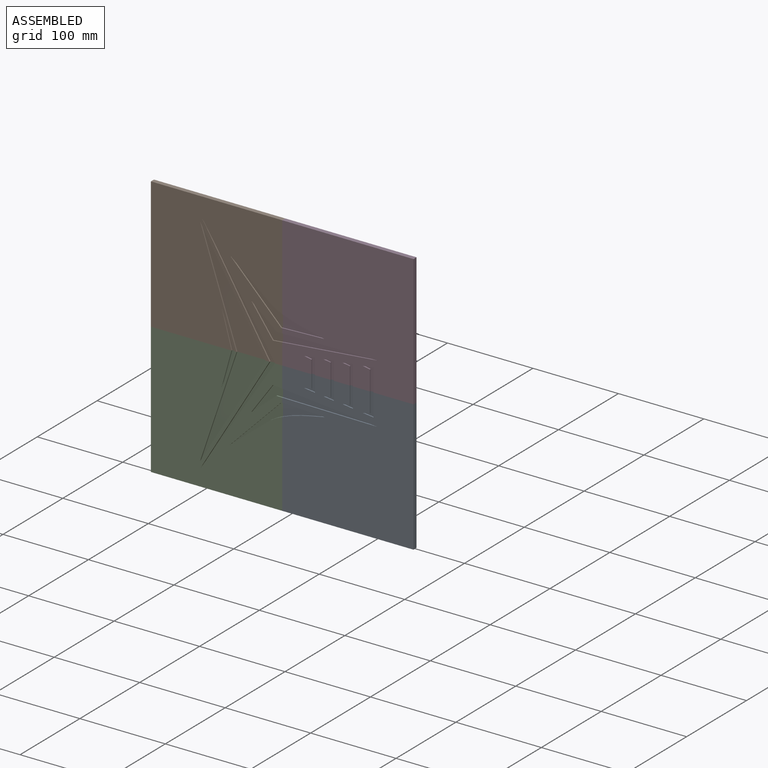
[diagram: assembled view]
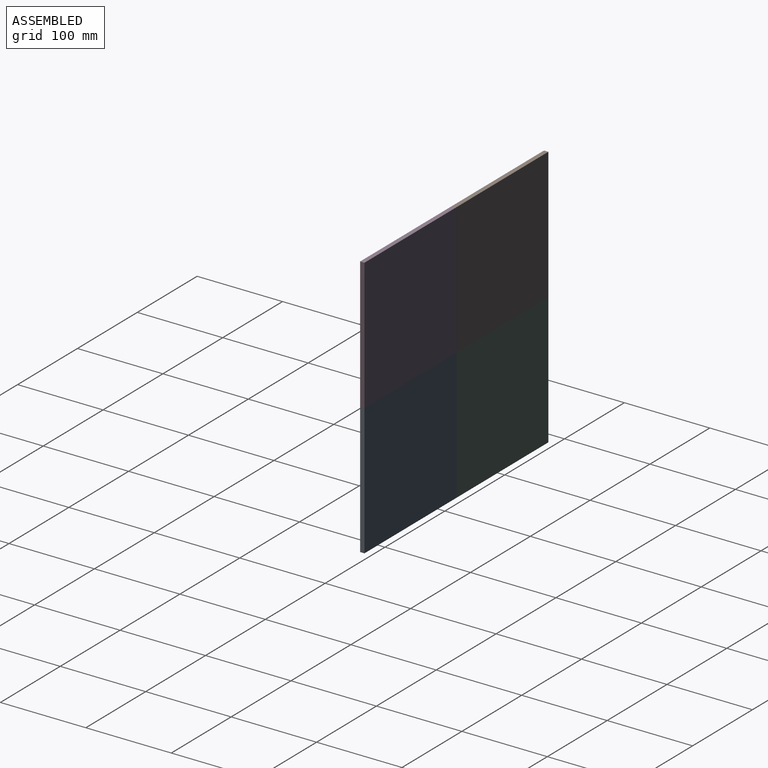
[diagram: assembled view, second angle]
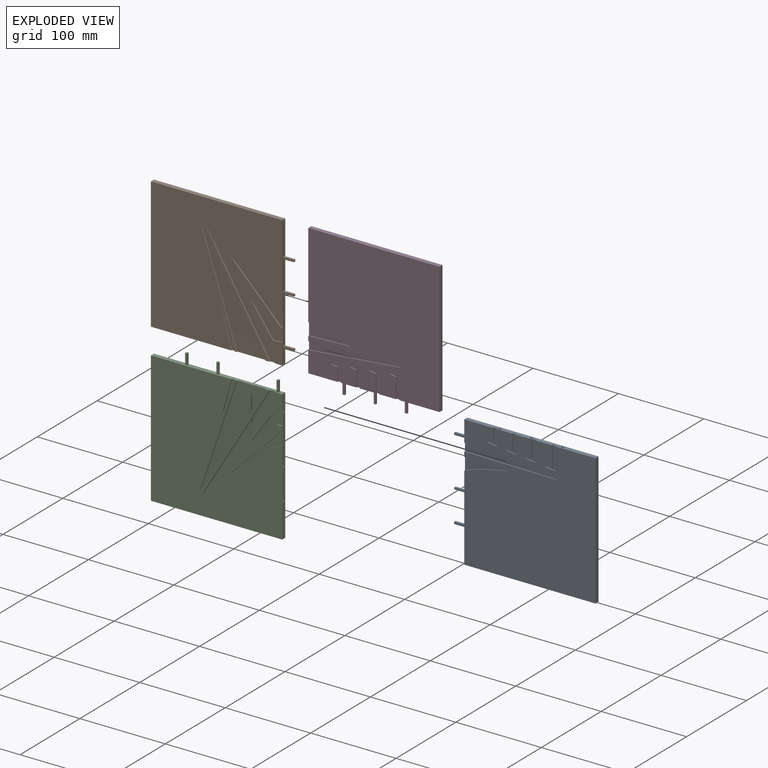
[diagram: exploded view]
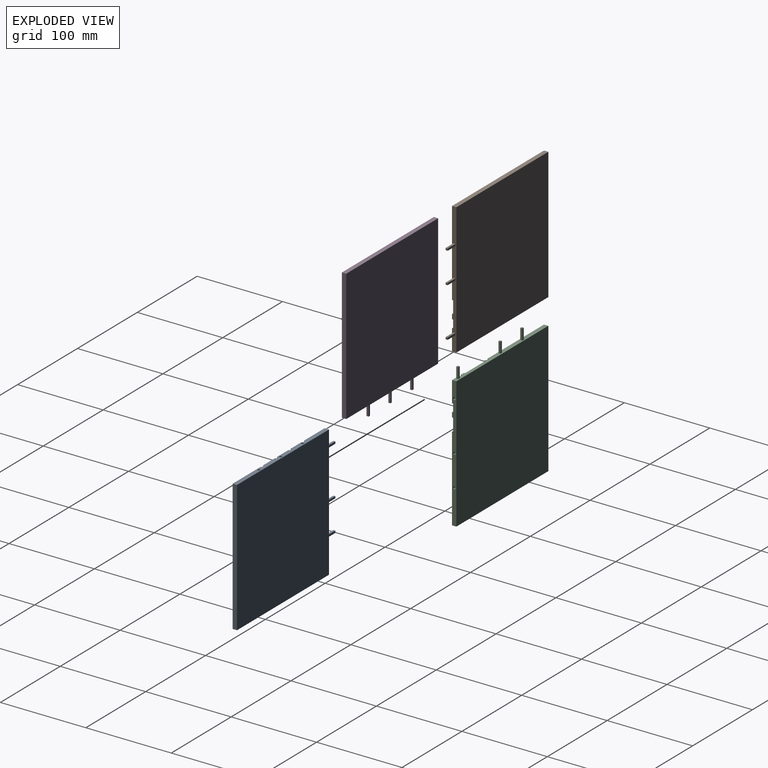
[diagram: exploded view, second angle]
ASSEMBLY  parts=4 mates=3
PART A: 62 faces, bbox 166.4x5.1x153.7 mm
  f0: plane 153.67x5.08mm, normal (0,0,-1), area 740.9mm2, adj f1,f2,f4,f5,f21,f22,f23,f24
  f1: plane 153.67x153.67mm, normal (0,-1,0), area 22378.3mm2, adj f0,f2,f3,f4,f36,f37,f39,f40
  f2: plane 153.67x5.08mm, normal (1,0,0), area 733.4mm2, adj f0,f1,f3,f5,f6,f7,f8,f9
  f3: plane 153.67x5.08mm, normal (0,0,1), area 780.6mm2, adj f1,f2,f4,f5
  f4: plane 153.67x5.08mm, normal (-1,0,0), area 780.6mm2, adj f0,f1,f3,f5
  f5: plane 153.67x153.67mm, normal (0,1,0), area 23614.5mm2, adj f0,f2,f3,f4
  f6: plane 12.7x2.29mm, normal (0,-1,0), area 29mm2, adj f2,f7,f9,f10
  f7: plane 12.7x2.29mm, normal (0,0,-1), area 29mm2, adj f2,f6,f8,f10
  f8: plane 12.7x2.29mm, normal (0,1,0), area 29mm2, adj f2,f7,f9,f10
  f9: plane 12.7x2.29mm, normal (0,0,1), area 29mm2, adj f2,f6,f8,f10
  f10: plane 2.29x2.29mm, normal (1,0,0), area 5.2mm2, adj f6,f7,f8,f9
  f11: plane 12.7x2.41mm, normal (0,-1,0), area 30.6mm2, adj f2,f12,f14,f15
  f12: plane 12.7x2.41mm, normal (0,0,-1), area 30.6mm2, adj f2,f11,f13,f15
  f13: plane 12.7x2.41mm, normal (0,1,0), area 30.6mm2, adj f2,f12,f14,f15
  f14: plane 12.7x2.41mm, normal (0,0,1), area 30.6mm2, adj f2,f11,f13,f15
  f15: plane 2.41x2.41mm, normal (1,0,0), area 5.8mm2, adj f11,f12,f13,f14
  f16: plane 12.7x2.41mm, normal (0,-1,0), area 30.6mm2, adj f2,f17,f19,f20
  f17: plane 12.7x2.41mm, normal (0,0,-1), area 30.6mm2, adj f2,f16,f18,f20
  f18: plane 12.7x2.41mm, normal (0,1,0), area 30.6mm2, adj f2,f17,f19,f20
  f19: plane 12.7x2.41mm, normal (0,0,1), area 30.6mm2, adj f2,f16,f18,f20
  f20: plane 2.41x2.41mm, normal (1,0,0), area 5.8mm2, adj f16,f17,f18,f19
  f21: plane 12.7x2.54mm, normal (0,1,0), area 32.3mm2, adj f0,f22,f24,f25
  f22: plane 12.7x2.54mm, normal (1,0,0), area 32.3mm2, adj f0,f21,f23,f25
  f23: plane 12.7x2.54mm, normal (0,-1,0), area 32.3mm2, adj f0,f22,f24,f25
  f24: plane 12.7x2.54mm, normal (-1,0,0), area 32.3mm2, adj f0,f21,f23,f25
  f25: plane 2.54x2.54mm, normal (0,0,-1), area 6.5mm2, adj f21,f22,f23,f24
  f26: plane 12.7x2.54mm, normal (0,1,0), area 32.3mm2, adj f0,f27,f29,f30
  f27: plane 12.7x2.54mm, normal (1,0,0), area 32.3mm2, adj f0,f26,f28,f30
  f28: plane 12.7x2.54mm, normal (0,-1,0), area 32.3mm2, adj f0,f27,f29,f30
  f29: plane 12.7x2.54mm, normal (-1,0,0), area 32.3mm2, adj f0,f26,f28,f30
  f30: plane 2.54x2.54mm, normal (0,0,-1), area 6.5mm2, adj f26,f27,f28,f29
  f31: plane 12.7x2.54mm, normal (0,1,0), area 32.3mm2, adj f0,f32,f34,f35
  f32: plane 12.7x2.54mm, normal (1,0,0), area 32.3mm2, adj f0,f31,f33,f35
  f33: plane 12.7x2.54mm, normal (0,-1,0), area 32.3mm2, adj f0,f32,f34,f35
  f34: plane 12.7x2.54mm, normal (-1,0,0), area 32.3mm2, adj f0,f31,f33,f35
  f35: plane 2.54x2.54mm, normal (0,0,-1), area 6.5mm2, adj f31,f32,f33,f34
  f36: plane 23.58x1.27mm, normal (1,0,0), area 29.9mm2, adj f0,f1,f38,f40
  f37: plane 20.54x1.27mm, normal (-1,0,0), area 26.1mm2, adj f0,f1,f38,f39
  f38: plane 23.58x12.32mm, normal (0,-1,0), area 96.4mm2, adj f0,f36,f37,f39,f40
  f39: plane 8.66x1.33mm, normal (-0.15,0,0.99), area 11.1mm2, adj f1,f37,f38,f40
  f40: plane 12.32x1.72mm, normal (-0.14,0,-0.99), area 15.8mm2, adj f1,f36,f38,f39
  f41: plane 49.78x1.72mm, normal (0.03,0,1), area 63.3mm2, adj f1,f2,f42,f43
  f42: extruded ~49.78x12.89mm, area 65.4mm2, adj f1,f2,f41,f43
  f43: plane 49.78x14.61mm, normal (0,-1,0), area 319.1mm2, adj f2,f41,f42
  f44: plane 23.34x1.27mm, normal (-1,0,0), area 29.6mm2, adj f0,f1,f45,f48
  f45: plane 8.11x1.56mm, normal (-0.19,0,0.98), area 10.5mm2, adj f1,f44,f46,f48
  f46: plane 12.32x1.4mm, normal (-0.11,0,-0.99), area 15.7mm2, adj f1,f45,f47,f48
  f47: plane 26.31x1.27mm, normal (1,0,0), area 33.4mm2, adj f0,f1,f46,f48
  f48: plane 26.31x12.32mm, normal (0,-1,0), area 119.8mm2, adj f0,f44,f45,f46,f47
  f49: plane 18.44x1.27mm, normal (1,0,0), area 23.4mm2, adj f0,f1,f51,f53
  f50: plane 15.49x1.27mm, normal (-1,0,0), area 19.7mm2, adj f0,f1,f51,f52
  f51: plane 18.44x12.58mm, normal (0,-1,0), area 88.7mm2, adj f0,f49,f50,f52,f53
  f52: plane 8.25x1.47mm, normal (-0.18,0,0.98), area 10.6mm2, adj f1,f50,f51,f53
  f53: plane 12.58x1.47mm, normal (-0.12,0,-0.99), area 16.1mm2, adj f1,f49,f51,f52
  f54: plane 18.34x1.27mm, normal (-1,0,0), area 23.3mm2, adj f0,f1,f56,f57
  f55: plane 21.19x1.27mm, normal (1,0,0), area 26.9mm2, adj f0,f1,f56,f58
  f56: plane 21.19x12.19mm, normal (0,-1,0), area 90.1mm2, adj f0,f54,f55,f57,f58
  f57: plane 8.35x1.28mm, normal (-0.15,0,0.99), area 10.7mm2, adj f1,f54,f56,f58
  f58: plane 12.19x1.57mm, normal (-0.13,0,-0.99), area 15.6mm2, adj f1,f55,f56,f57
  f59: plane 111.9x1.27mm, normal (-0.01,0,-1), area 142.1mm2, adj f1,f2,f60,f61
  f60: plane 111.9x10.5mm, normal (0.09,0,1), area 142.7mm2, adj f1,f2,f59,f61
  f61: plane 111.9x10.5mm, normal (0,-1,0), area 521.9mm2, adj f2,f59,f60
PART B: 55 faces, bbox 166.4x5.1x153.7 mm
  f0: plane 153.67x5.08mm, normal (1,0,0), area 733.4mm2, adj f1,f2,f3,f5,f6,f7,f8,f9
  f1: plane 153.67x153.67mm, normal (0,-1,0), area 20303.4mm2, adj f0,f2,f3,f4,f36,f37,f38,f39
  f2: plane 153.67x5.08mm, normal (0,0,-1), area 706mm2, adj f0,f1,f4,f5,f21,f22,f23,f24
  f3: plane 153.67x5.08mm, normal (0,0,1), area 780.6mm2, adj f0,f1,f4,f5
  f4: plane 153.67x5.08mm, normal (-1,0,0), area 780.6mm2, adj f1,f2,f3,f5
  f5: plane 153.67x153.67mm, normal (0,1,0), area 23614.5mm2, adj f0,f2,f3,f4
  f6: plane 12.7x2.29mm, normal (0,-1,0), area 29mm2, adj f0,f7,f9,f10
  f7: plane 12.7x2.29mm, normal (0,0,-1), area 29mm2, adj f0,f6,f8,f10
  f8: plane 12.7x2.29mm, normal (0,1,0), area 29mm2, adj f0,f7,f9,f10
  f9: plane 12.7x2.29mm, normal (0,0,1), area 29mm2, adj f0,f6,f8,f10
  f10: plane 2.29x2.29mm, normal (1,0,0), area 5.2mm2, adj f6,f7,f8,f9
  f11: plane 12.7x2.41mm, normal (0,-1,0), area 30.6mm2, adj f0,f12,f14,f15
  f12: plane 12.7x2.41mm, normal (0,0,-1), area 30.6mm2, adj f0,f11,f13,f15
  f13: plane 12.7x2.41mm, normal (0,1,0), area 30.6mm2, adj f0,f12,f14,f15
  f14: plane 12.7x2.41mm, normal (0,0,1), area 30.6mm2, adj f0,f11,f13,f15
  f15: plane 2.41x2.41mm, normal (1,0,0), area 5.8mm2, adj f11,f12,f13,f14
  f16: plane 12.7x2.41mm, normal (0,-1,0), area 30.6mm2, adj f0,f17,f19,f20
  f17: plane 12.7x2.41mm, normal (0,0,-1), area 30.6mm2, adj f0,f16,f18,f20
  f18: plane 12.7x2.41mm, normal (0,1,0), area 30.6mm2, adj f0,f17,f19,f20
  f19: plane 12.7x2.41mm, normal (0,0,1), area 30.6mm2, adj f0,f16,f18,f20
  f20: plane 2.41x2.41mm, normal (1,0,0), area 5.8mm2, adj f16,f17,f18,f19
  f21: plane 12.7x2.54mm, normal (0,1,0), area 32.3mm2, adj f2,f22,f24,f25
  f22: plane 12.7x2.54mm, normal (1,0,0), area 32.3mm2, adj f2,f21,f23,f25
  f23: plane 12.7x2.54mm, normal (0,-1,0), area 32.3mm2, adj f2,f22,f24,f25
  f24: plane 12.7x2.54mm, normal (-1,0,0), area 32.3mm2, adj f2,f21,f23,f25
  f25: plane 2.54x2.54mm, normal (0,0,-1), area 6.5mm2, adj f21,f22,f23,f24
  f26: plane 12.7x2.54mm, normal (0,1,0), area 32.3mm2, adj f2,f27,f29,f30
  f27: plane 12.7x2.54mm, normal (1,0,0), area 32.3mm2, adj f2,f26,f28,f30
  f28: plane 12.7x2.54mm, normal (0,-1,0), area 32.3mm2, adj f2,f27,f29,f30
  f29: plane 12.7x2.54mm, normal (-1,0,0), area 32.3mm2, adj f2,f26,f28,f30
  f30: plane 2.54x2.54mm, normal (0,0,-1), area 6.5mm2, adj f26,f27,f28,f29
  f31: plane 12.7x2.54mm, normal (0,1,0), area 32.3mm2, adj f2,f32,f34,f35
  f32: plane 12.7x2.54mm, normal (1,0,0), area 32.3mm2, adj f2,f31,f33,f35
  f33: plane 12.7x2.54mm, normal (0,-1,0), area 32.3mm2, adj f2,f32,f34,f35
  f34: plane 12.7x2.54mm, normal (-1,0,0), area 32.3mm2, adj f2,f31,f33,f35
  f35: plane 2.54x2.54mm, normal (0,0,-1), area 6.5mm2, adj f31,f32,f33,f34
  f36: extruded ~13.85x7.51mm, area 20mm2, adj f0,f1,f37,f40
  f37: plane 47.22x38.44mm, normal (-0.63,0,-0.78), area 77.3mm2, adj f1,f36,f38,f40
  f38: plane 60.61x59.87mm, normal (0.71,0,0.7), area 108.2mm2, adj f1,f37,f39,f40
  f39: plane 1.27x1.2mm, normal (-0.03,0,1), area 1.5mm2, adj f0,f1,f38,f40
  f40: plane 61.07x60.61mm, normal (0,-1,0), area 390.8mm2, adj f0,f36,f37,f38,f39
  f41: plane 10.93x1.27mm, normal (-0.09,0,1), area 13.9mm2, adj f0,f1,f44,f45
  f42: plane 6.69x1.27mm, normal (0.01,0,-1), area 8.5mm2, adj f0,f1,f43,f45
  f43: plane 29.53x25.15mm, normal (-0.65,0,-0.76), area 49.3mm2, adj f1,f42,f44,f45
  f44: plane 35.44x25.29mm, normal (0.81,0,0.58), area 55.3mm2, adj f1,f41,f43,f45
  f45: plane 36.22x35.44mm, normal (0,-1,0), area 290.4mm2, adj f0,f41,f42,f43,f44
  f46: plane 42.22x15.29mm, normal (0,-1,0), area 75.9mm2, adj f2,f47,f48
  f47: plane 42.22x11.69mm, normal (0.96,0,0.27), area 55.6mm2, adj f1,f2,f46,f48
  f48: plane 42.22x15.29mm, normal (-0.94,0,-0.34), area 57mm2, adj f1,f2,f46,f47
  f49: plane 126.49x76.28mm, normal (0,-1,0), area 2130.7mm2, adj f2,f50,f51
  f50: plane 126.49x76.28mm, normal (-0.86,0,-0.52), area 187.6mm2, adj f1,f2,f49,f51
  f51: plane 126.49x42.59mm, normal (0.95,0,0.32), area 169.5mm2, adj f1,f2,f49,f50
  f52: plane 134.64x87.62mm, normal (0,-1,0), area 423.4mm2, adj f2,f53,f54
  f53: plane 134.64x87.62mm, normal (-0.84,0,-0.55), area 204mm2, adj f1,f2,f52,f54
  f54: plane 134.64x81.34mm, normal (0.86,0,0.52), area 199.8mm2, adj f1,f2,f52,f53
PART C: 55 faces, bbox 166.4x5.1x153.7 mm
  f0: plane 153.67x5.08mm, normal (0,0,-1), area 730.9mm2, adj f1,f2,f4,f5,f21,f22,f23,f24
  f1: plane 153.75x153.67mm, normal (0,-1,0), area 20303.4mm2, adj f0,f2,f3,f4,f36,f37,f39,f40
  f2: plane 153.67x5.08mm, normal (1,0,0), area 708.4mm2, adj f0,f1,f3,f5,f6,f7,f8,f9
  f3: plane 153.67x5.08mm, normal (0,0,1), area 780.6mm2, adj f1,f2,f4,f5
  f4: plane 153.67x5.08mm, normal (-1,0,0), area 780.6mm2, adj f0,f1,f3,f5
  f5: plane 153.67x153.67mm, normal (0,1,0), area 23614.5mm2, adj f0,f2,f3,f4
  f6: plane 12.7x2.29mm, normal (0,-1,0), area 29mm2, adj f2,f7,f9,f10
  f7: plane 12.7x2.29mm, normal (0,0,-1), area 29mm2, adj f2,f6,f8,f10
  f8: plane 12.7x2.29mm, normal (0,1,0), area 29mm2, adj f2,f7,f9,f10
  f9: plane 12.7x2.29mm, normal (0,0,1), area 29mm2, adj f2,f6,f8,f10
  f10: plane 2.29x2.29mm, normal (1,0,0), area 5.2mm2, adj f6,f7,f8,f9
  f11: plane 12.7x2.41mm, normal (0,-1,0), area 30.6mm2, adj f2,f12,f14,f15
  f12: plane 12.7x2.41mm, normal (0,0,-1), area 30.6mm2, adj f2,f11,f13,f15
  f13: plane 12.7x2.41mm, normal (0,1,0), area 30.6mm2, adj f2,f12,f14,f15
  f14: plane 12.7x2.41mm, normal (0,0,1), area 30.6mm2, adj f2,f11,f13,f15
  f15: plane 2.41x2.41mm, normal (1,0,0), area 5.8mm2, adj f11,f12,f13,f14
  f16: plane 12.7x2.41mm, normal (0,-1,0), area 30.6mm2, adj f2,f17,f19,f20
  f17: plane 12.7x2.41mm, normal (0,0,-1), area 30.6mm2, adj f2,f16,f18,f20
  f18: plane 12.7x2.41mm, normal (0,1,0), area 30.6mm2, adj f2,f17,f19,f20
  f19: plane 12.7x2.41mm, normal (0,0,1), area 30.6mm2, adj f2,f16,f18,f20
  f20: plane 2.41x2.41mm, normal (1,0,0), area 5.8mm2, adj f16,f17,f18,f19
  f21: plane 12.7x2.54mm, normal (0,1,0), area 32.3mm2, adj f0,f22,f24,f25
  f22: plane 12.7x2.54mm, normal (1,0,0), area 32.3mm2, adj f0,f21,f23,f25
  f23: plane 12.7x2.54mm, normal (0,-1,0), area 32.3mm2, adj f0,f22,f24,f25
  f24: plane 12.7x2.54mm, normal (-1,0,0), area 32.3mm2, adj f0,f21,f23,f25
  f25: plane 2.54x2.54mm, normal (0,0,-1), area 6.5mm2, adj f21,f22,f23,f24
  f26: plane 12.7x2.54mm, normal (0,1,0), area 32.3mm2, adj f0,f27,f29,f30
  f27: plane 12.7x2.54mm, normal (1,0,0), area 32.3mm2, adj f0,f26,f28,f30
  f28: plane 12.7x2.54mm, normal (0,-1,0), area 32.3mm2, adj f0,f27,f29,f30
  f29: plane 12.7x2.54mm, normal (-1,0,0), area 32.3mm2, adj f0,f26,f28,f30
  f30: plane 2.54x2.54mm, normal (0,0,-1), area 6.5mm2, adj f26,f27,f28,f29
  f31: plane 12.7x2.54mm, normal (0,1,0), area 32.3mm2, adj f0,f32,f34,f35
  f32: plane 12.7x2.54mm, normal (1,0,0), area 32.3mm2, adj f0,f31,f33,f35
  f33: plane 12.7x2.54mm, normal (0,-1,0), area 32.3mm2, adj f0,f32,f34,f35
  f34: plane 12.7x2.54mm, normal (-1,0,0), area 32.3mm2, adj f0,f31,f33,f35
  f35: plane 2.54x2.54mm, normal (0,0,-1), area 6.5mm2, adj f31,f32,f33,f34
  f36: plane 6.69x1.27mm, normal (1,0,-0.01), area 8.5mm2, adj f0,f1,f38,f40
  f37: plane 10.93x1.27mm, normal (-1,0,0.09), area 13.9mm2, adj f0,f1,f38,f39
  f38: plane 36.22x35.44mm, normal (0,-1,0), area 290.4mm2, adj f0,f36,f37,f39,f40
  f39: plane 35.44x25.29mm, normal (-0.58,0,-0.81), area 55.3mm2, adj f1,f37,f38,f40
  f40: plane 29.53x25.15mm, normal (0.76,0,0.65), area 49.3mm2, adj f1,f36,f38,f39
  f41: plane 1.27x1.2mm, normal (-1,0,0.03), area 1.5mm2, adj f0,f1,f42,f44
  f42: plane 61.14x60.61mm, normal (0,-1,0), area 390.8mm2, adj f0,f41,f43,f44,f45
  f43: extruded ~13.85x7.51mm, area 20mm2, adj f0,f1,f42,f45
  f44: plane 60.61x59.87mm, normal (-0.7,0,-0.71), area 108.2mm2, adj f1,f41,f42,f45
  f45: plane 47.22x38.44mm, normal (0.78,0,0.63), area 77.3mm2, adj f1,f42,f43,f44
  f46: plane 42.22x15.29mm, normal (0.34,0,0.94), area 57mm2, adj f1,f2,f47,f48
  f47: plane 42.22x11.69mm, normal (-0.27,0,-0.96), area 55.6mm2, adj f1,f2,f46,f48
  f48: plane 42.22x15.29mm, normal (0,-1,0), area 75.9mm2, adj f2,f46,f47
  f49: plane 126.49x42.59mm, normal (-0.32,0,-0.95), area 169.5mm2, adj f1,f2,f50,f51
  f50: plane 126.49x76.28mm, normal (0.52,0,0.86), area 187.6mm2, adj f1,f2,f49,f51
  f51: plane 126.49x76.28mm, normal (0,-1,0), area 2130.7mm2, adj f2,f49,f50
  f52: plane 134.64x81.34mm, normal (-0.52,0,-0.86), area 199.8mm2, adj f1,f2,f53,f54
  f53: plane 134.64x87.62mm, normal (0.55,0,0.84), area 204mm2, adj f1,f2,f52,f54
  f54: plane 134.64x87.62mm, normal (0,-1,0), area 423.4mm2, adj f2,f52,f53
PART D: 62 faces, bbox 166.4x5.1x153.7 mm
  f0: plane 153.67x5.08mm, normal (0,0,-1), area 730.9mm2, adj f1,f2,f4,f5,f21,f22,f23,f24
  f1: plane 153.67x5.08mm, normal (1,0,0), area 743.4mm2, adj f0,f2,f3,f5,f6,f7,f8,f9
  f2: plane 153.67x153.67mm, normal (0,-1,0), area 22378.3mm2, adj f0,f1,f3,f4,f36,f37,f38,f39
  f3: plane 153.67x5.08mm, normal (0,0,1), area 780.6mm2, adj f1,f2,f4,f5
  f4: plane 153.67x5.08mm, normal (-1,0,0), area 780.6mm2, adj f0,f2,f3,f5
  f5: plane 153.67x153.67mm, normal (0,1,0), area 23614.5mm2, adj f0,f1,f3,f4
  f6: plane 12.7x2.29mm, normal (0,-1,0), area 29mm2, adj f1,f7,f9,f10
  f7: plane 12.7x2.29mm, normal (0,0,-1), area 29mm2, adj f1,f6,f8,f10
  f8: plane 12.7x2.29mm, normal (0,1,0), area 29mm2, adj f1,f7,f9,f10
  f9: plane 12.7x2.29mm, normal (0,0,1), area 29mm2, adj f1,f6,f8,f10
  f10: plane 2.29x2.29mm, normal (1,0,0), area 5.2mm2, adj f6,f7,f8,f9
  f11: plane 12.7x2.41mm, normal (0,-1,0), area 30.6mm2, adj f1,f12,f14,f15
  f12: plane 12.7x2.41mm, normal (0,0,-1), area 30.6mm2, adj f1,f11,f13,f15
  f13: plane 12.7x2.41mm, normal (0,1,0), area 30.6mm2, adj f1,f12,f14,f15
  f14: plane 12.7x2.41mm, normal (0,0,1), area 30.6mm2, adj f1,f11,f13,f15
  f15: plane 2.41x2.41mm, normal (1,0,0), area 5.8mm2, adj f11,f12,f13,f14
  f16: plane 12.7x2.41mm, normal (0,-1,0), area 30.6mm2, adj f1,f17,f19,f20
  f17: plane 12.7x2.41mm, normal (0,0,-1), area 30.6mm2, adj f1,f16,f18,f20
  f18: plane 12.7x2.41mm, normal (0,1,0), area 30.6mm2, adj f1,f17,f19,f20
  f19: plane 12.7x2.41mm, normal (0,0,1), area 30.6mm2, adj f1,f16,f18,f20
  f20: plane 2.41x2.41mm, normal (1,0,0), area 5.8mm2, adj f16,f17,f18,f19
  f21: plane 12.7x2.54mm, normal (0,1,0), area 32.3mm2, adj f0,f22,f24,f25
  f22: plane 12.7x2.54mm, normal (1,0,0), area 32.3mm2, adj f0,f21,f23,f25
  f23: plane 12.7x2.54mm, normal (0,-1,0), area 32.3mm2, adj f0,f22,f24,f25
  f24: plane 12.7x2.54mm, normal (-1,0,0), area 32.3mm2, adj f0,f21,f23,f25
  f25: plane 2.54x2.54mm, normal (0,0,-1), area 6.5mm2, adj f21,f22,f23,f24
  f26: plane 12.7x2.54mm, normal (0,1,0), area 32.3mm2, adj f0,f27,f29,f30
  f27: plane 12.7x2.54mm, normal (1,0,0), area 32.3mm2, adj f0,f26,f28,f30
  f28: plane 12.7x2.54mm, normal (0,-1,0), area 32.3mm2, adj f0,f27,f29,f30
  f29: plane 12.7x2.54mm, normal (-1,0,0), area 32.3mm2, adj f0,f26,f28,f30
  f30: plane 2.54x2.54mm, normal (0,0,-1), area 6.5mm2, adj f26,f27,f28,f29
  f31: plane 12.7x2.54mm, normal (0,1,0), area 32.3mm2, adj f0,f32,f34,f35
  f32: plane 12.7x2.54mm, normal (1,0,0), area 32.3mm2, adj f0,f31,f33,f35
  f33: plane 12.7x2.54mm, normal (0,-1,0), area 32.3mm2, adj f0,f32,f34,f35
  f34: plane 12.7x2.54mm, normal (-1,0,0), area 32.3mm2, adj f0,f31,f33,f35
  f35: plane 2.54x2.54mm, normal (0,0,-1), area 6.5mm2, adj f31,f32,f33,f34
  f36: plane 23.34x1.27mm, normal (0,0,1), area 29.6mm2, adj f1,f2,f39,f40
  f37: plane 26.31x1.27mm, normal (0,0,-1), area 33.4mm2, adj f1,f2,f38,f40
  f38: plane 12.32x1.4mm, normal (0.99,0,0.11), area 15.7mm2, adj f2,f37,f39,f40
  f39: plane 8.11x1.56mm, normal (-0.98,0,0.19), area 10.5mm2, adj f2,f36,f38,f40
  f40: plane 26.31x12.32mm, normal (0,-1,0), area 119.8mm2, adj f1,f36,f37,f38,f39
  f41: plane 23.58x1.27mm, normal (0,0,-1), area 29.9mm2, adj f1,f2,f42,f45
  f42: plane 12.32x1.72mm, normal (0.99,0,0.14), area 15.8mm2, adj f2,f41,f43,f45
  f43: plane 8.66x1.33mm, normal (-0.99,0,0.15), area 11.1mm2, adj f2,f42,f44,f45
  f44: plane 20.54x1.27mm, normal (0,0,1), area 26.1mm2, adj f1,f2,f43,f45
  f45: plane 23.58x12.32mm, normal (0,-1,0), area 96.4mm2, adj f1,f41,f42,f43,f44
  f46: plane 8.35x1.28mm, normal (-0.99,0,0.15), area 10.7mm2, adj f2,f47,f49,f50
  f47: plane 18.34x1.27mm, normal (0,0,1), area 23.3mm2, adj f1,f2,f46,f50
  f48: plane 21.19x1.27mm, normal (0,0,-1), area 26.9mm2, adj f1,f2,f49,f50
  f49: plane 12.19x1.57mm, normal (0.99,0,0.13), area 15.6mm2, adj f2,f46,f48,f50
  f50: plane 21.19x12.19mm, normal (0,-1,0), area 90.1mm2, adj f1,f46,f47,f48,f49
  f51: plane 18.44x1.27mm, normal (0,0,-1), area 23.4mm2, adj f1,f2,f52,f55
  f52: plane 12.58x1.47mm, normal (0.99,0,0.12), area 16.1mm2, adj f2,f51,f53,f55
  f53: plane 8.25x1.47mm, normal (-0.98,0,0.18), area 10.6mm2, adj f2,f52,f54,f55
  f54: plane 15.49x1.27mm, normal (0,0,1), area 19.7mm2, adj f1,f2,f53,f55
  f55: plane 18.44x12.58mm, normal (0,-1,0), area 88.7mm2, adj f1,f51,f52,f53,f54
  f56: plane 49.78x1.72mm, normal (-1,0,-0.03), area 63.3mm2, adj f0,f2,f57,f58
  f57: extruded ~49.78x12.89mm, area 65.4mm2, adj f0,f2,f56,f58
  f58: plane 49.78x14.61mm, normal (0,-1,0), area 319.1mm2, adj f0,f56,f57
  f59: plane 111.9x10.5mm, normal (-1,0,-0.09), area 142.7mm2, adj f0,f2,f60,f61
  f60: plane 111.9x1.27mm, normal (1,0,0.01), area 142.1mm2, adj f0,f2,f59,f61
  f61: plane 111.9x10.5mm, normal (0,-1,0), area 521.9mm2, adj f0,f59,f60
PLACE A rot(axis=(0,1,0),180deg) t=(109.4,37.42,52.03)mm
PLACE B t=(-41.24,37.42,197.98)mm
PLACE C rot(axis=(0,-1,0),90deg) t=(-38.89,37.42,49.69)mm
PLACE D rot(axis=(0,1,0),90deg) t=(107.05,37.42,200.32)mm fixed
MATE fastened D.f35 <-> B.f20  axis (-1,0,0) through (46.78,34.88,144.05)mm
MATE fastened A.f20 <-> C.f35  axis (-1,0,0) through (21.38,34.88,105.95)mm
MATE fastened C.f15 <-> B.f30  axis (0,0,1) through (-79.24,34.88,137.7)mm
